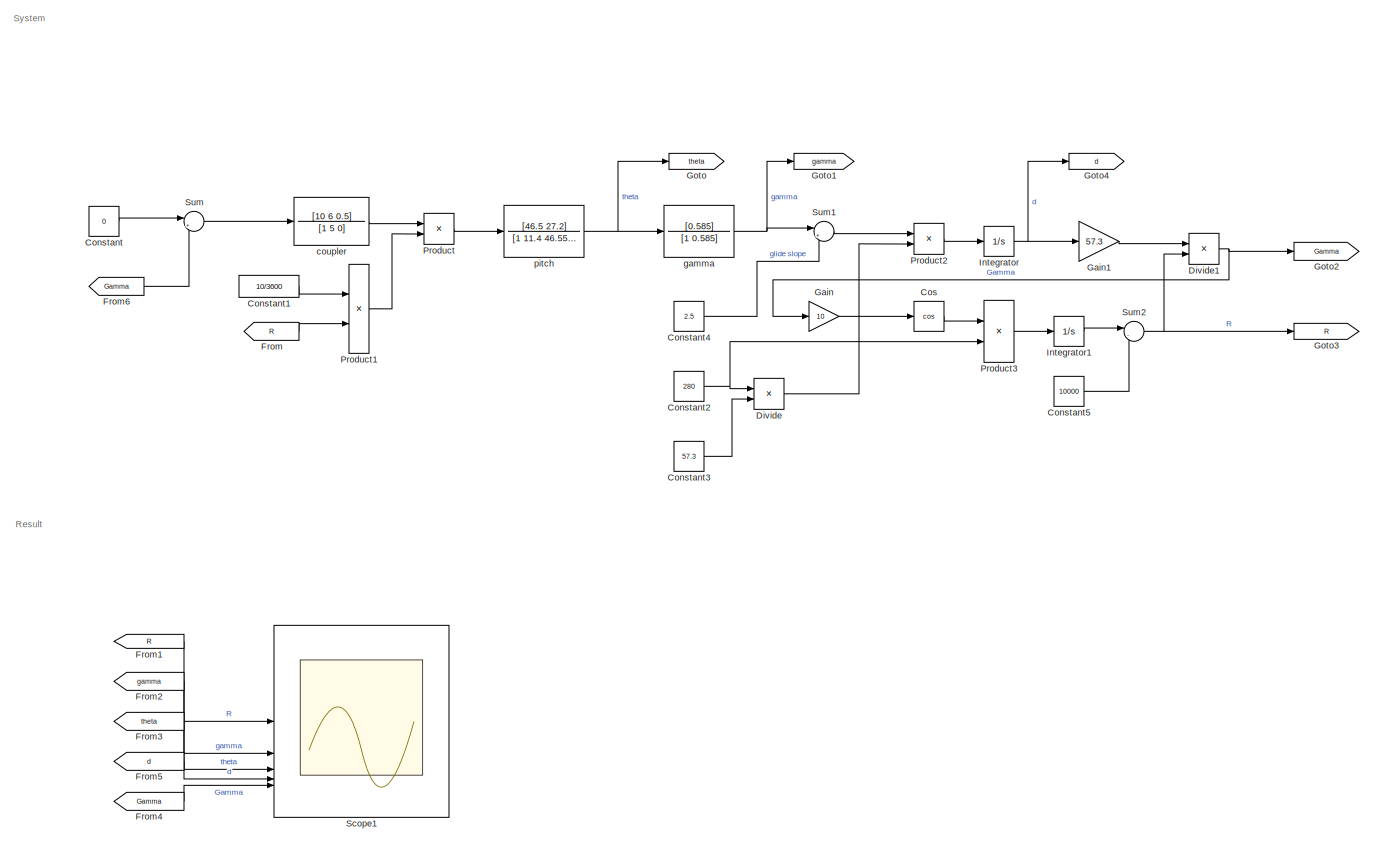
[diagram: root canvas - part 1/1, most of the canvas]
MODEL slx_31cba7b1508a
KIND model
CONFIG AbsTol = auto
CONFIG EnableMultiTasking = off
CONFIG FixedStep = auto
CONFIG MaxStep = auto
CONFIG MinStep = auto
CONFIG RelTol = 1e-3
CONFIG SampleTimeConstraint = Unconstrained
CONFIG SolverName = ode4
CONFIG StartTime = 0.0
CONFIG StopTime = 20
BLOCK [Constant] Constant
  Value = 0
BLOCK [Constant] Constant1
  Value = 10/3600
BLOCK [Constant] Constant2
  Value = 280
BLOCK [Constant] Constant3
  Value = 57.3
BLOCK [Constant] Constant4
  Value = 2.5
BLOCK [Constant] Constant5
  Value = 10000
BLOCK [Trigonometry] Cos
  Operator = cos
BLOCK [Product] Divide
  Inputs = */
BLOCK [Product] Divide1
  Inputs = */
BLOCK [From] From
  GotoTag = R
BLOCK [From] From1
  GotoTag = R
BLOCK [From] From2
  GotoTag = gamma
BLOCK [From] From3
  GotoTag = theta
BLOCK [From] From4
  GotoTag = Gamma
BLOCK [From] From5
  GotoTag = d
BLOCK [From] From6
  GotoTag = Gamma
BLOCK [Gain] Gain
  Gain = 10
BLOCK [Gain] Gain1
  Gain = 57.3
BLOCK [Goto] Goto
  GotoTag = theta
BLOCK [Goto] Goto1
  GotoTag = gamma
BLOCK [Goto] Goto2
  GotoTag = Gamma
BLOCK [Goto] Goto3
  GotoTag = R
BLOCK [Goto] Goto4
  GotoTag = d
BLOCK [Integrator] Integrator
BLOCK [Integrator] Integrator1
BLOCK [Product] Product
BLOCK [Product] Product1
BLOCK [Product] Product2
BLOCK [Product] Product3
BLOCK [Scope] Scope1
  Floating = off
  NumInputPorts = 5
  ScopeSpecificationString = Simulink.scopes.TimeScopeBlockCfg('CurrentConfiguration', extmgr.ConfigurationSet(extmgr.Configuration('Core','General UI',true),extmgr.Configuration('Core','Source UI',true),extmgr.Configuration('Sources','WiredSimulink',true,'DataLoggingVariableName','ScopeData2'),extmgr.Configuration('Visuals','Time Domain',true,'SerializedDisplays',{struct('MinYLimReal','4983.28137','MaxYLimReal','10557.41318'...<+4909ch>
BLOCK [Sum] Sum
  Inputs = |+-
BLOCK [Sum] Sum1
  Inputs = |++
BLOCK [Sum] Sum2
  Inputs = |-+
BLOCK [TransferFcn] coupler
  Denominator = [1 5 0]
  Numerator = [10 6 0.5]
BLOCK [TransferFcn] gamma
  Denominator = [1 0.585]
  Numerator = [0.585]
BLOCK [TransferFcn] pitch
  Denominator = [1 11.4 46.55 83.25 31.35]
  Numerator = [46.5 27.2]
ANNOTATION (root): Result
ANNOTATION (root): System
LINE Constant1:1 -> Product1:1
NET Constant2:1 -> Divide:1, Product3:2
LINE Constant3:1 -> Divide:2
LINE Constant4:1 -> Sum1:2
LINE Constant5:1 -> Sum2:2
LINE Constant:1 -> Sum:1
LINE Cos:1 -> Product3:1
NET Divide1:1 -> Gain:1, Goto2:1
LINE Divide:1 -> Product2:2
LINE From1:1 -> Scope1:1
LINE From2:1 -> Scope1:2
LINE From3:1 -> Scope1:3
LINE From4:1 -> Scope1:5
LINE From5:1 -> Scope1:4
LINE From6:1 -> Sum:2
LINE From:1 -> Product1:2
LINE Gain1:1 -> Divide1:1
LINE Gain:1 -> Cos:1
LINE Integrator1:1 -> Sum2:1
NET Integrator:1 -> Gain1:1, Goto4:1
LINE Product1:1 -> Product:2
LINE Product2:1 -> Integrator:1
LINE Product3:1 -> Integrator1:1
LINE Product:1 -> pitch:1
LINE Sum1:1 -> Product2:1
NET Sum2:1 -> Divide1:2, Goto3:1
LINE Sum:1 -> coupler:1
LINE coupler:1 -> Product:1
NET gamma:1 -> Goto1:1, Sum1:1
NET pitch:1 -> Goto:1, gamma:1
note: NET lines group one-source signal fan-out (src -> all destinations, sorted); 1:1 wires keep LINE
